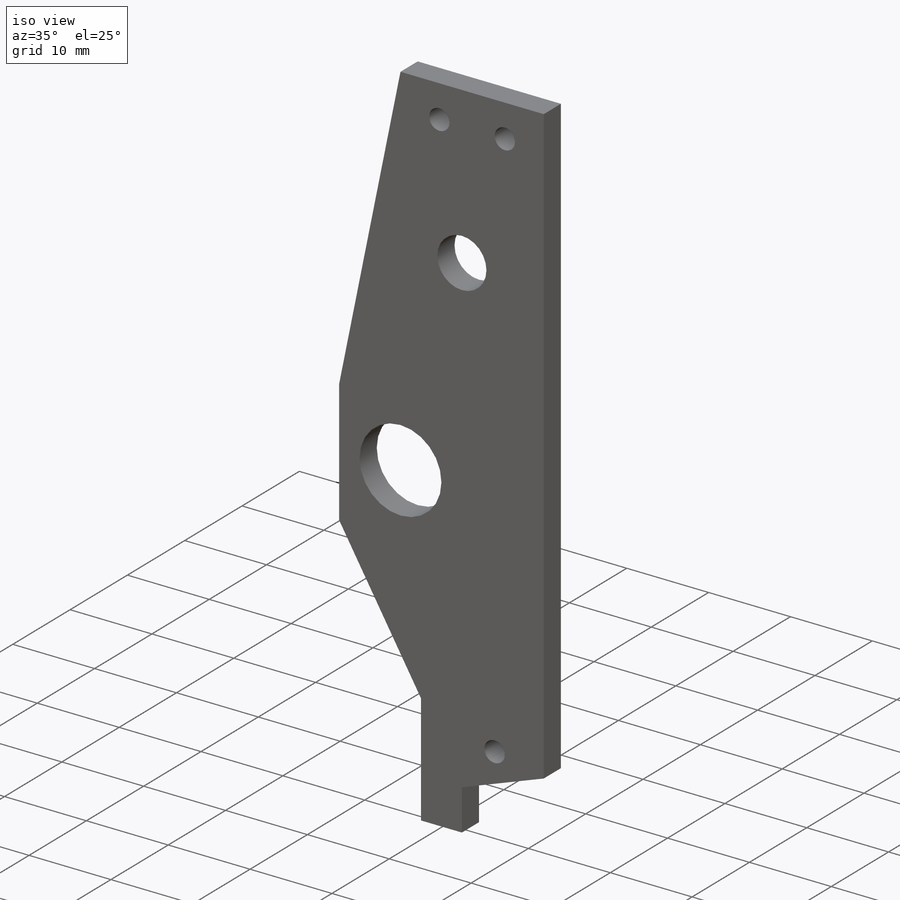
[diagram: iso view]
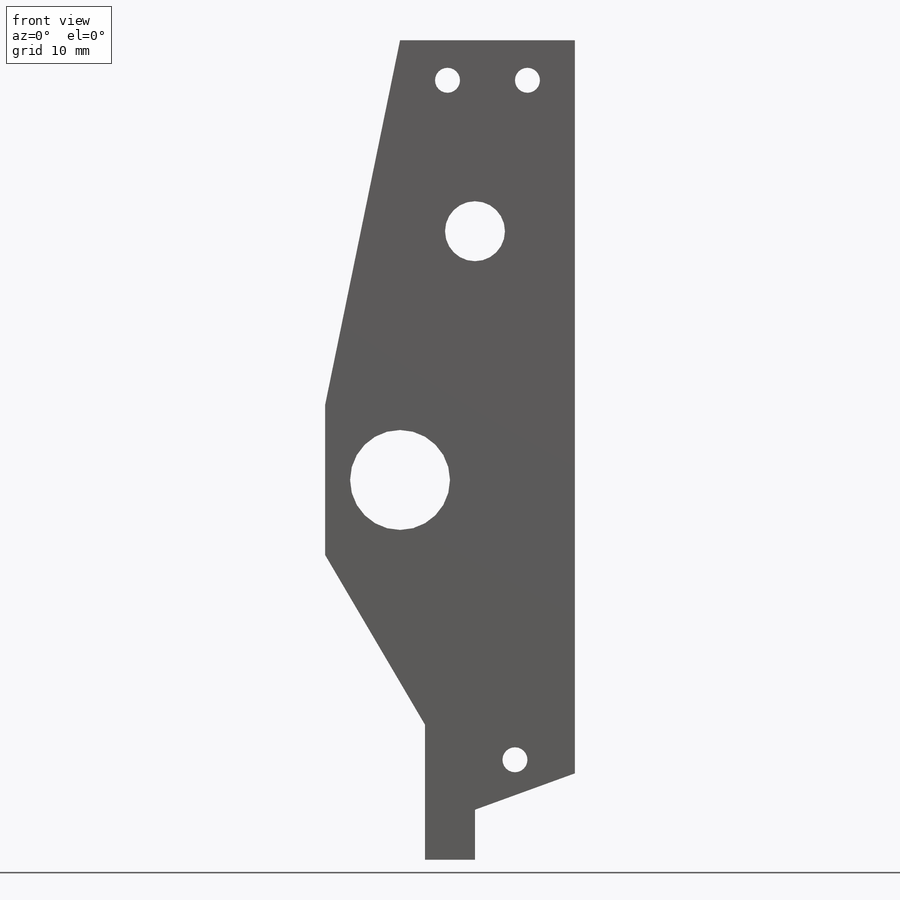
[diagram: front view]
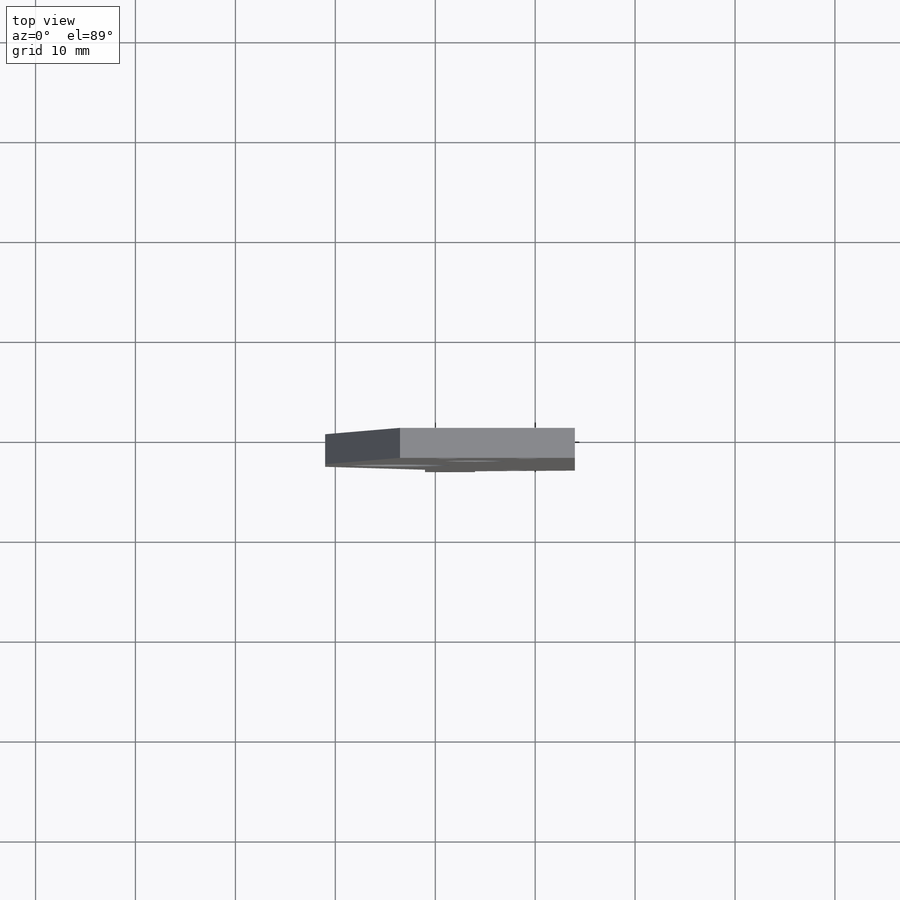
[diagram: top view]
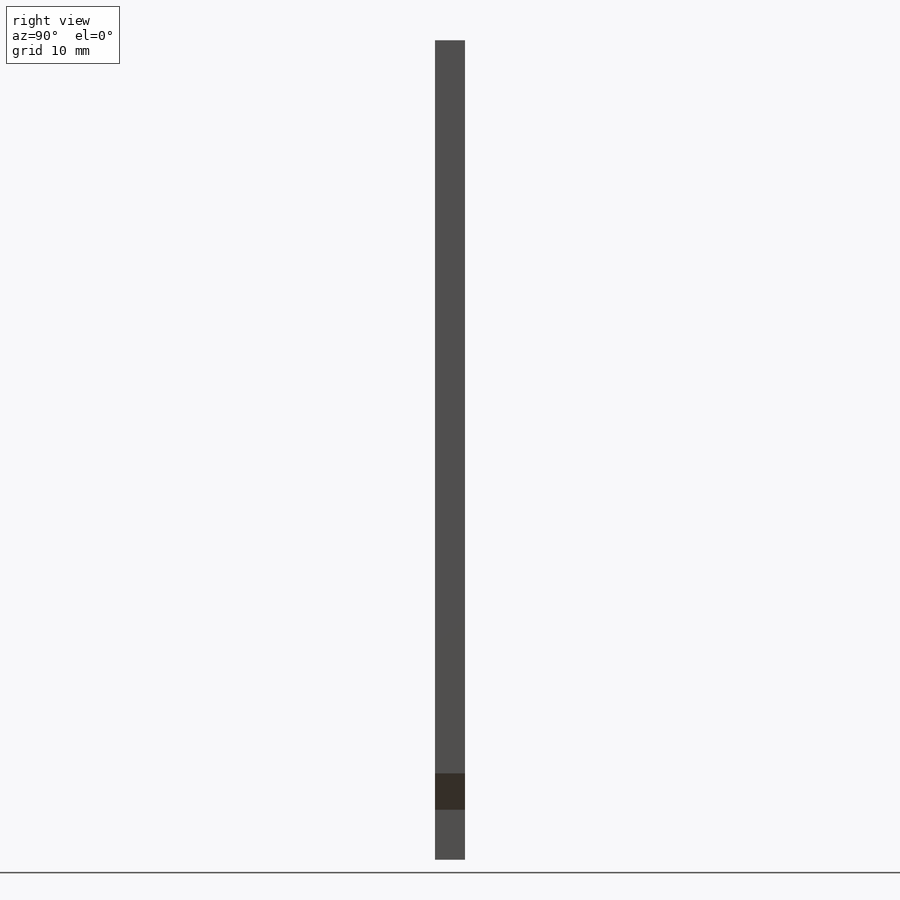
[diagram: right view]
SOLIDWORKS PART (.sldprt)
format: sldprt  version: not decoded by parser v0  size: 204,800 bytes
history: native  units: mm
features: sketch x6, extrude x4, cut_extrude x2, material x1 (+12 scaffold rows collapsed)
feature tree (25):
  scaffold x12  (default folders/planes/origin — collapsed)
  material  "Material <not specified>"
  sketch  "Sketch2"  dims[D1=77.0mm D2=20.0mm]
  extrude  "Boss-Extrude1"  Depth=3mm
  sketch  "Sketch3"  dims[D1=25.5mm D2=15.0mm D3=15.0mm]
  extrude  "Boss-Extrude2"  Depth=3mm
  sketch  "Sketch4"  dims[c1.D1=~5.318808mm c1.D3=~4.755048mm c2.D1=7.5mm c2.D2=7.5mm c2.D3=28.0mm c2.D4=0.0mm]
  extrude  "Boss-Extrude3"  Depth=3mm
  sketch  "Sketch5"
  extrude  "Boss-Extrude4"  Depth=3mm
  sketch  "Sketch6"  dims[c1.D1=~4.710046mm c1.D3=~4.529488mm c1.D5=~2.531184mm c1.D8=5.0mm c2.D1=7.5mm c2.D2=7.5mm c2.D3=26.0mm c2.D4=0.0mm c2.D5=5.0mm c2.D6=4.0mm c2.D7=10.0mm c2.D8=~58.076842mm c3.D8=20.0deg]
  cut_extrude  "Cut-Extrude1"  [1 undecoded]
  sketch  "Sketch7"  dims[D1=4.0mm D2=4.0mm D3=4.0mm D4=4.0mm]
  cut_extrude  "Cut-Extrude2"  Depth=10mm
decode coverage: 10 of 12 modeling features carry decoded parameters
note: ~ marks probable driven/reference dimensions
note: 1 parameter value undecoded
note: suppression state not decoded; provenance and decode notes live in map.json
